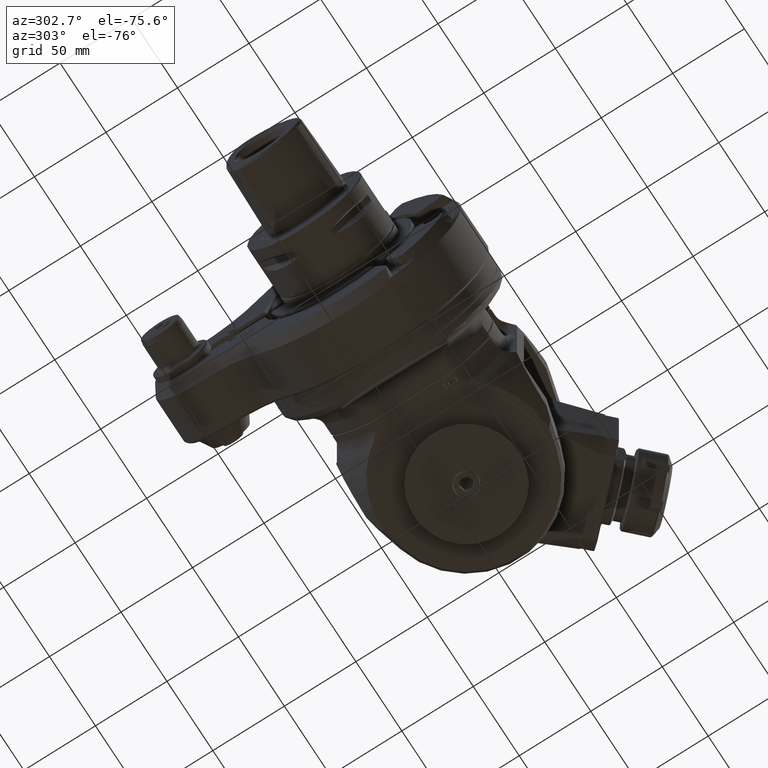
[diagram: clean part render]
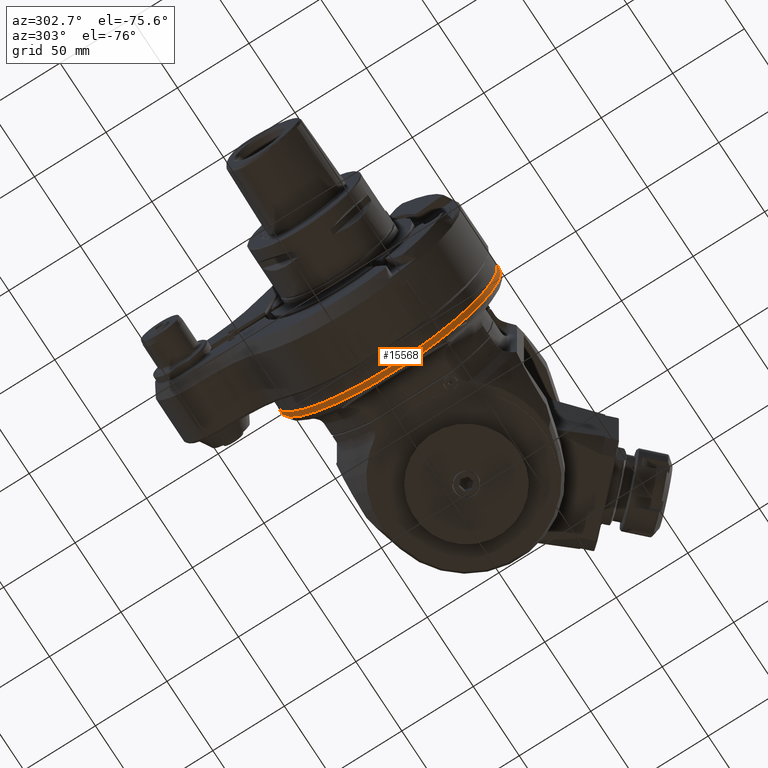
[diagram: same view with one face highlighted and labeled with its STEP entity id]
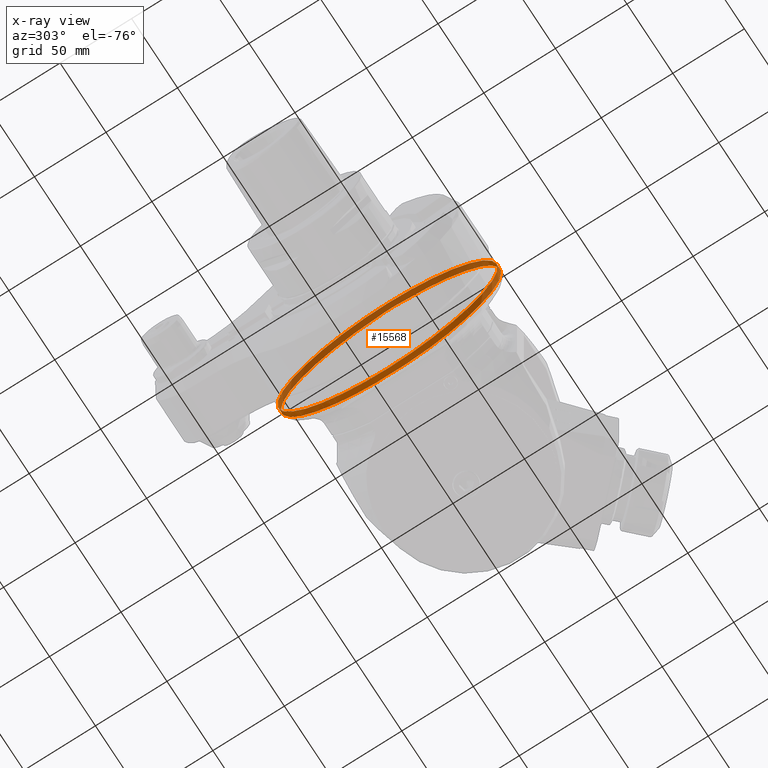
[diagram: x-ray of the same camera — body ghosted, the highlighted face saturated]
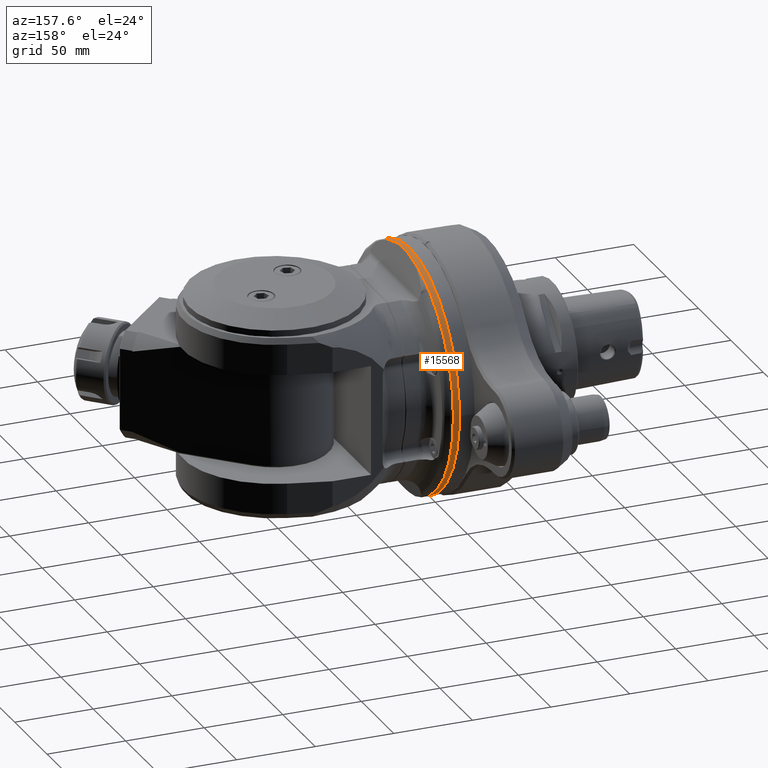
[diagram: same view with one face highlighted and labeled with its STEP entity id]
A machine part, auxiliary view. The second image highlights one B-rep face of the part: STEP entity #15568.
The next image is the same camera in x-ray: the body ghosted, the highlighted face saturated — about 48% of this face is hidden behind the body in this view.
A second angle (auxiliary view) of the same face is appended — the face is thin or edge-on in the first view.
In plain terms, the highlighted cylindrical surface (bore or boss wall) has radius 77 mm, axis along (-1, -0, 0).
Its self-contained STEP definition (entity closure, byte-faithful):
#49=ELLIPSE('',#17071,81.9416884806462,77.);
#50=ELLIPSE('',#17072,81.9416884806462,77.);
#51=ELLIPSE('',#17077,81.9416884806462,77.);
#1965=FACE_OUTER_BOUND('',#2946,.T.);
#2946=EDGE_LOOP('',(#13159,#13160,#13161,#13162,#13163,#13164,#13165,#13166));
#4040=LINE('',#44152,#5083);
#5083=VECTOR('',#20567,77.);
#5979=CIRCLE('',#17074,77.);
#5980=CIRCLE('',#17076,77.);
#5981=CIRCLE('',#17078,77.);
#7249=VERTEX_POINT('',#44099);
#7250=VERTEX_POINT('',#44114);
#7251=VERTEX_POINT('',#44116);
#7252=VERTEX_POINT('',#44133);
#7253=VERTEX_POINT('',#44150);
#7254=VERTEX_POINT('',#44153);
#9319=EDGE_CURVE('',#7249,#7250,#49,.T.);
#9320=EDGE_CURVE('',#7250,#7251,#50,.T.);
#9322=EDGE_CURVE('',#7249,#7252,#5979,.T.);
#9324=EDGE_CURVE('',#7253,#7253,#5980,.T.);
#9325=EDGE_CURVE('',#7253,#7250,#4040,.T.);
#9326=EDGE_CURVE('',#7254,#7252,#51,.T.);
#9327=EDGE_CURVE('',#7251,#7254,#5981,.T.);
#13159=ORIENTED_EDGE('',*,*,#9324,.F.);
#13160=ORIENTED_EDGE('',*,*,#9325,.T.);
#13161=ORIENTED_EDGE('',*,*,#9319,.F.);
#13162=ORIENTED_EDGE('',*,*,#9322,.T.);
#13163=ORIENTED_EDGE('',*,*,#9326,.F.);
#13164=ORIENTED_EDGE('',*,*,#9327,.F.);
#13165=ORIENTED_EDGE('',*,*,#9320,.F.);
#13166=ORIENTED_EDGE('',*,*,#9325,.F.);
#14920=CYLINDRICAL_SURFACE('',#17075,77.);
#15568=ADVANCED_FACE('',(#1965),#14920,.T.);
#17071=AXIS2_PLACEMENT_3D('',#44115,#20555,#20556);
#17072=AXIS2_PLACEMENT_3D('',#44117,#20557,#20558);
#17074=AXIS2_PLACEMENT_3D('',#44134,#20561,#20562);
#17075=AXIS2_PLACEMENT_3D('',#44149,#20563,#20564);
#17076=AXIS2_PLACEMENT_3D('',#44151,#20565,#20566);
#17077=AXIS2_PLACEMENT_3D('',#44154,#20568,#20569);
#17078=AXIS2_PLACEMENT_3D('',#44155,#20570,#20571);
#20555=DIRECTION('center_axis',(0.939692620785897,-0.342020143325699,0.));
#20556=DIRECTION('ref_axis',(0.342020143325699,0.939692620785897,0.));
#20557=DIRECTION('center_axis',(0.939692620785897,-0.342020143325699,0.));
#20558=DIRECTION('ref_axis',(0.342020143325699,0.939692620785897,0.));
#20561=DIRECTION('center_axis',(-1.,0.,0.));
#20562=DIRECTION('ref_axis',(0.,-0.991790282454087,0.127875078219498));
#20563=DIRECTION('center_axis',(-1.,0.,0.));
#20564=DIRECTION('ref_axis',(0.,1.,0.));
#20565=DIRECTION('center_axis',(-1.,0.,0.));
#20566=DIRECTION('ref_axis',(0.,0.,1.));
#20567=DIRECTION('',(1.,0.,0.));
#20568=DIRECTION('center_axis',(0.939692620785897,0.342020143325699,0.));
#20569=DIRECTION('ref_axis',(-0.342020143325699,0.939692620785897,0.));
#20570=DIRECTION('center_axis',(1.,0.,0.));
#20571=DIRECTION('ref_axis',(0.,-0.991790282454034,-0.127875078219904));
#44099=CARTESIAN_POINT('',(-22.18535130402,-76.36785174893,9.846381023206));
#44114=CARTESIAN_POINT('',(-22.4154344510629,-77.,9.42978035343462E-15));
#44115=CARTESIAN_POINT('Origin',(5.6102735874375,0.,0.));
#44116=CARTESIAN_POINT('',(-22.18535130404,-76.36785174898,-9.846381022811));
#44117=CARTESIAN_POINT('Origin',(5.6102735874375,0.,0.));
#44133=CARTESIAN_POINT('',(-22.18535130404,76.36785174898,9.84638102281));
#44134=CARTESIAN_POINT('Origin',(-22.18535130404,0.,0.));
#44149=CARTESIAN_POINT('Origin',(-7.5,0.,0.));
#44150=CARTESIAN_POINT('',(-26.,-77.,9.42978035343462E-15));
#44151=CARTESIAN_POINT('Origin',(-26.,0.,0.));
#44152=CARTESIAN_POINT('',(-7.5,-77.,9.42978035343462E-15));
#44153=CARTESIAN_POINT('',(-22.18535130403,76.36785174895,-9.846381023004));
#44154=CARTESIAN_POINT('Origin',(5.61027358744186,0.,0.));
#44155=CARTESIAN_POINT('Origin',(-22.18535130404,0.,0.));